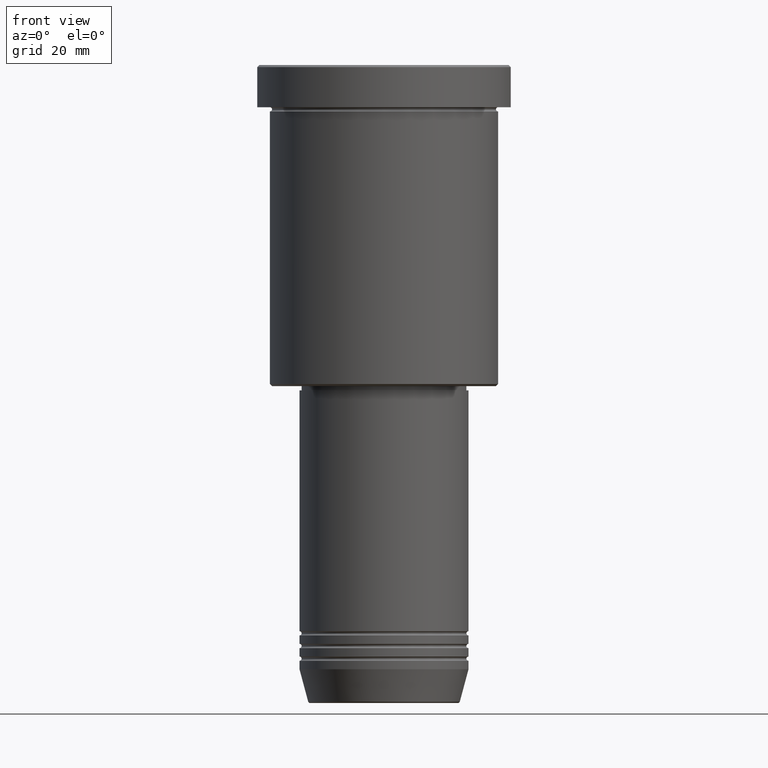
[diagram: clean part render]
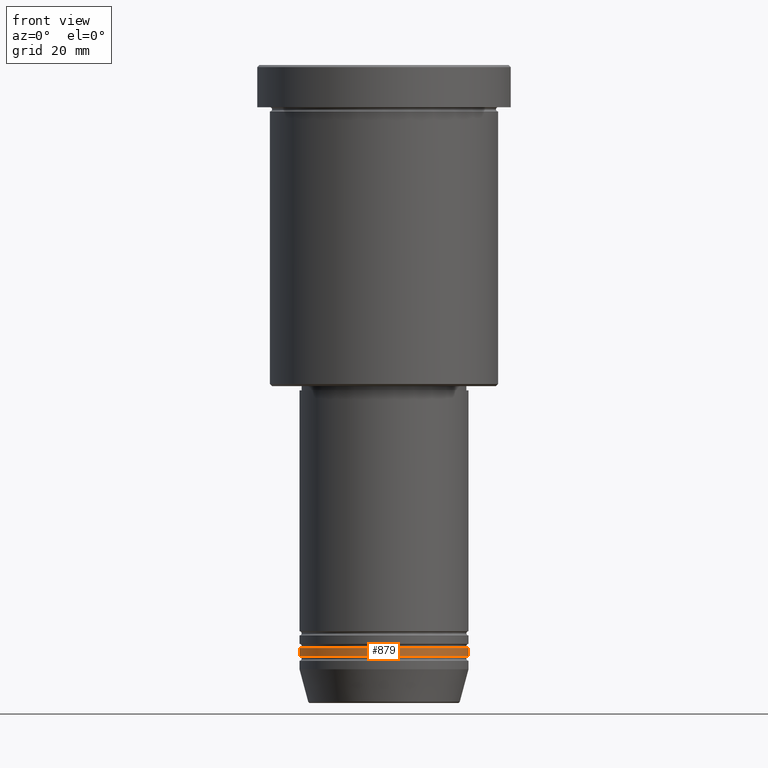
[diagram: same view with one face highlighted and labeled with its STEP entity id]
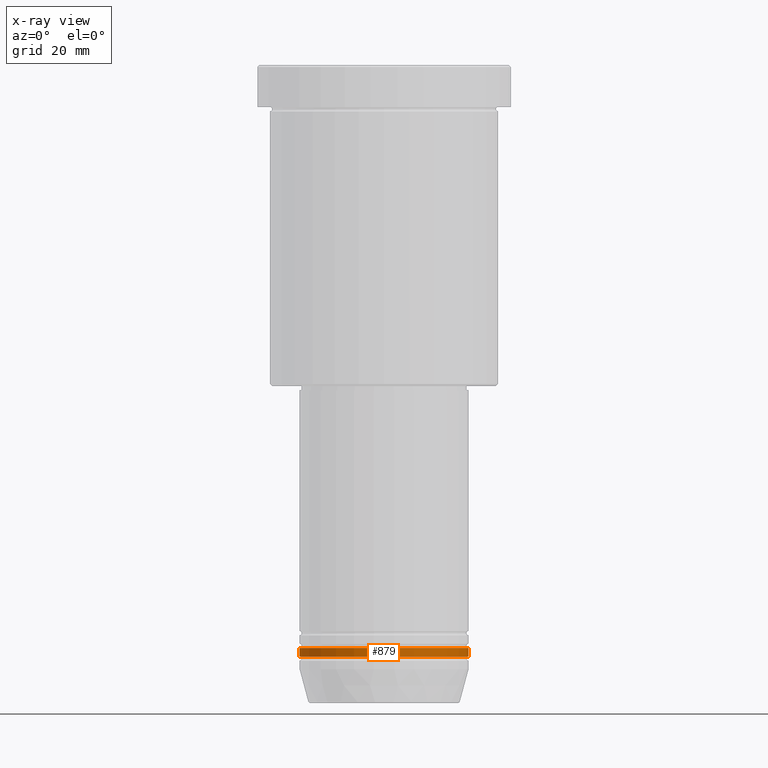
[diagram: x-ray of the same camera — body ghosted, the highlighted face saturated]
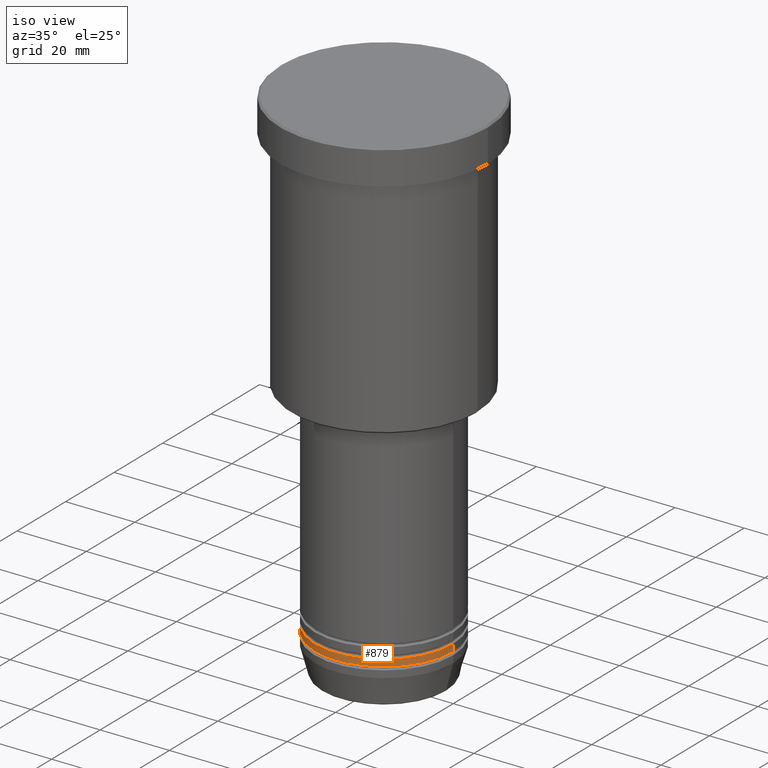
[diagram: same view with one face highlighted and labeled with its STEP entity id]
A machine part, front view. The second image highlights one B-rep face of the part: STEP entity #879.
The next image is the same camera in x-ray: the body ghosted, the highlighted face saturated — about 0% of this face is hidden behind the body in this view.
A second angle (iso view) of the same face is appended — the face is thin or edge-on in the first view.
In plain terms, the highlighted cylindrical surface (partial cylindrical patch) has radius 20 mm, axis along (-0, -0, 1).
Its self-contained STEP definition (entity closure, byte-faithful):
#1 = DIRECTION ( 'NONE',  ( 1.000000000000000000, 0.000000000000000000, 0.000000000000000000 ) ) ;
#5 = VERTEX_POINT ( 'NONE', #724 ) ;
#28 = AXIS2_PLACEMENT_3D ( 'NONE', #1152, #684, #1057 ) ;
#54 = VERTEX_POINT ( 'NONE', #200 ) ;
#61 = EDGE_CURVE ( 'NONE', #54, #668, #631, .T. ) ;
#144 = EDGE_LOOP ( 'NONE', ( #245, #884, #487, #372 ) ) ;
#174 = EDGE_CURVE ( 'NONE', #54, #1156, #1082, .T. ) ;
#194 = CARTESIAN_POINT ( 'NONE',  ( -20.00000000000000000, 2.449293598294706513E-15, -137.9999999999999432 ) ) ;
#200 = CARTESIAN_POINT ( 'NONE',  ( -20.00000000000000000, 2.449293598294706513E-15, -139.9999999999999716 ) ) ;
#239 = AXIS2_PLACEMENT_3D ( 'NONE', #334, #591, #665 ) ;
#245 = ORIENTED_EDGE ( 'NONE', *, *, #61, .F. ) ;
#246 = FACE_OUTER_BOUND ( 'NONE', #144, .T. ) ;
#301 = DIRECTION ( 'NONE',  ( -0.000000000000000000, -0.000000000000000000, 1.000000000000000000 ) ) ;
#334 = CARTESIAN_POINT ( 'NONE',  ( 0.000000000000000000, 0.000000000000000000, 0.000000000000000000 ) ) ;
#372 = ORIENTED_EDGE ( 'NONE', *, *, #632, .F. ) ;
#416 = CYLINDRICAL_SURFACE ( 'NONE', #239, 20.00000000000000000 ) ;
#424 = CIRCLE ( 'NONE', #1062, 20.00000000000000000 ) ;
#450 = EDGE_CURVE ( 'NONE', #1156, #5, #1071, .T. ) ;
#487 = ORIENTED_EDGE ( 'NONE', *, *, #450, .T. ) ;
#519 = VECTOR ( 'NONE', #301, 1000.000000000000000 ) ;
#590 = DIRECTION ( 'NONE',  ( -0.000000000000000000, -0.000000000000000000, 1.000000000000000000 ) ) ;
#591 = DIRECTION ( 'NONE',  ( -0.000000000000000000, -0.000000000000000000, 1.000000000000000000 ) ) ;
#631 = LINE ( 'NONE', #991, #519 ) ;
#632 = EDGE_CURVE ( 'NONE', #668, #5, #424, .T. ) ;
#665 = DIRECTION ( 'NONE',  ( 1.000000000000000000, 0.000000000000000000, 0.000000000000000000 ) ) ;
#668 = VERTEX_POINT ( 'NONE', #194 ) ;
#684 = DIRECTION ( 'NONE',  ( -0.000000000000000000, -0.000000000000000000, 1.000000000000000000 ) ) ;
#724 = CARTESIAN_POINT ( 'NONE',  ( 20.00000000000000000, 0.000000000000000000, -137.9999999999999432 ) ) ;
#738 = CARTESIAN_POINT ( 'NONE',  ( 0.000000000000000000, 0.000000000000000000, -137.9999999999999432 ) ) ;
#816 = DIRECTION ( 'NONE',  ( -0.000000000000000000, -0.000000000000000000, 1.000000000000000000 ) ) ;
#869 = VECTOR ( 'NONE', #590, 1000.000000000000000 ) ;
#879 = ADVANCED_FACE ( 'NONE', ( #246 ), #416, .T. ) ;
#884 = ORIENTED_EDGE ( 'NONE', *, *, #174, .T. ) ;
#937 = CARTESIAN_POINT ( 'NONE',  ( 20.00000000000000000, 0.000000000000000000, -139.9999999999999716 ) ) ;
#991 = CARTESIAN_POINT ( 'NONE',  ( -20.00000000000000000, 2.449293598294706513E-15, 0.000000000000000000 ) ) ;
#1022 = CARTESIAN_POINT ( 'NONE',  ( 20.00000000000000000, 0.000000000000000000, 0.000000000000000000 ) ) ;
#1057 = DIRECTION ( 'NONE',  ( 1.000000000000000000, 0.000000000000000000, 0.000000000000000000 ) ) ;
#1062 = AXIS2_PLACEMENT_3D ( 'NONE', #738, #816, #1 ) ;
#1071 = LINE ( 'NONE', #1022, #869 ) ;
#1082 = CIRCLE ( 'NONE', #28, 20.00000000000000000 ) ;
#1152 = CARTESIAN_POINT ( 'NONE',  ( 0.000000000000000000, 0.000000000000000000, -139.9999999999999716 ) ) ;
#1156 = VERTEX_POINT ( 'NONE', #937 ) ;